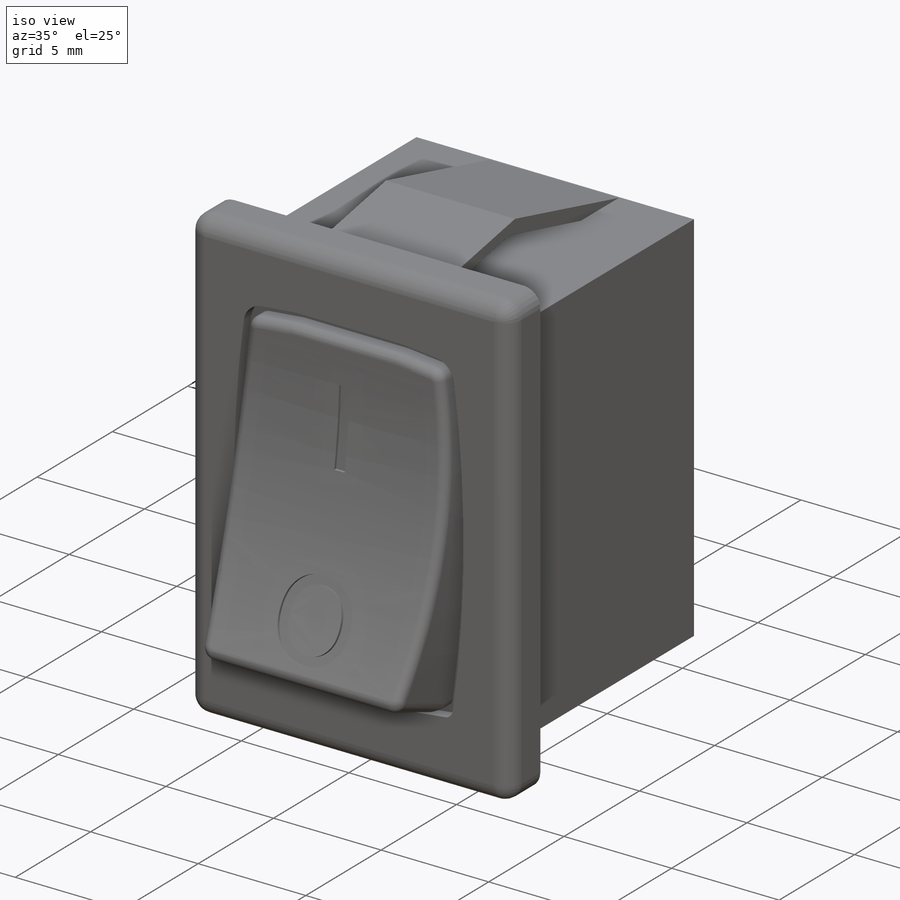
[diagram: iso view]
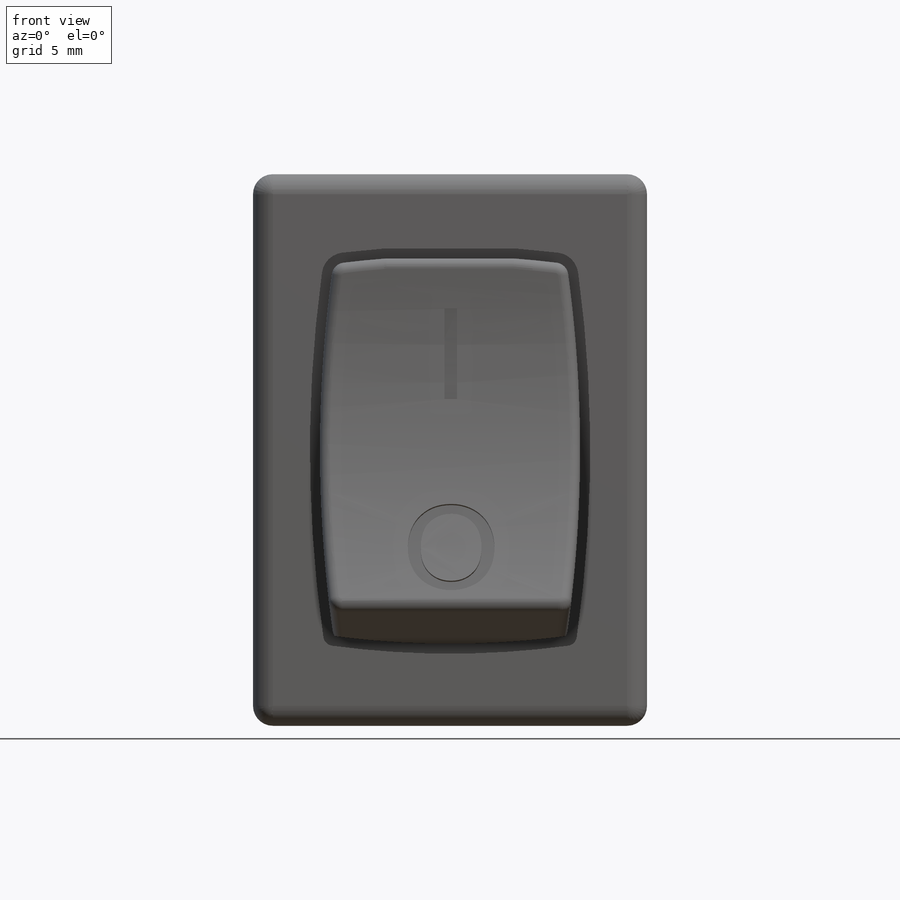
[diagram: front view]
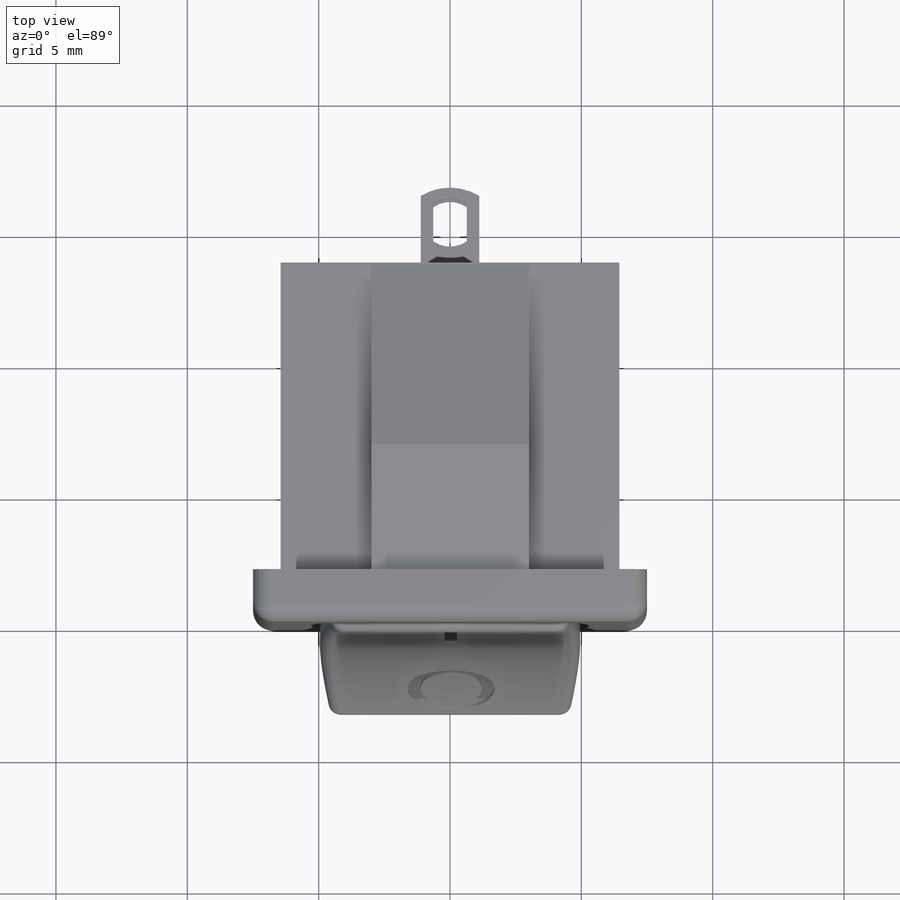
[diagram: top view]
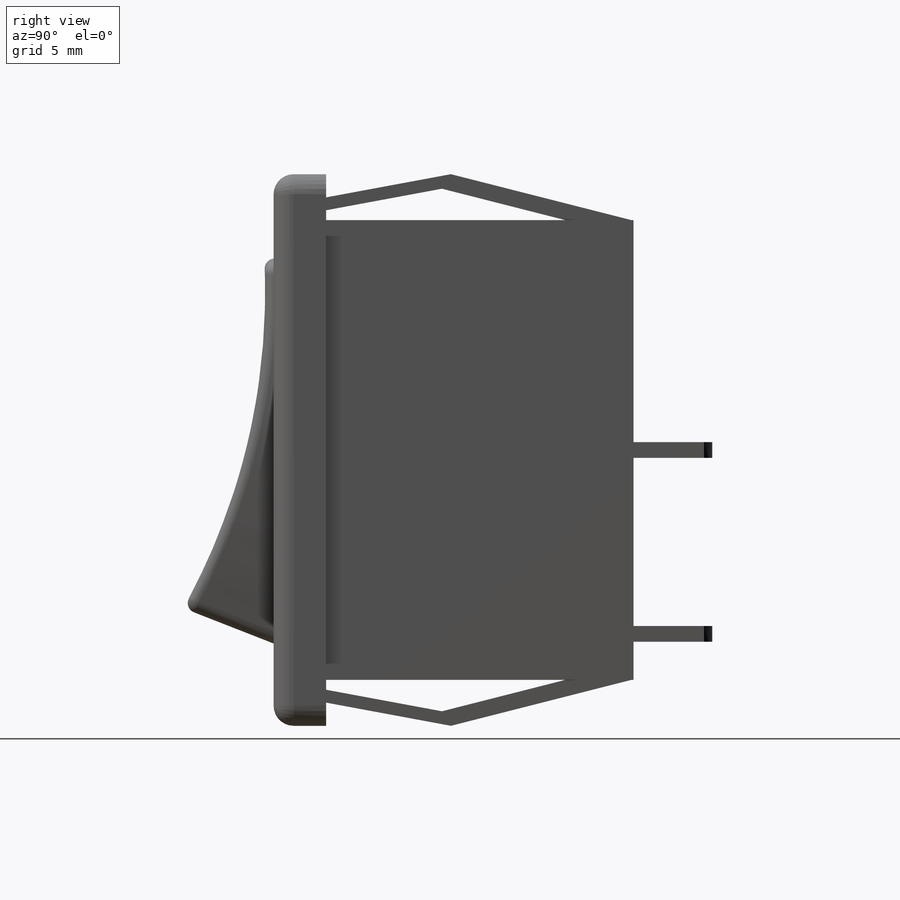
[diagram: right view]
SOLIDWORKS PART (.sldprt)
format: sldprt  version: not decoded by parser v0  size: 530,432 bytes
history: native  units: mm
features: sketch x11, plane x8, extrude x5, cut_extrude x4, fillet x3, material x1, mirror x1, pattern_linear x1 (+9 scaffold rows collapsed)
feature tree (43):
  scaffold x9  (default folders/planes/origin — collapsed)
  material  "PW100:Mi:0:30:C1:0:1:2:Re:16:"
  plane  "Plane1"
  plane  "Plane2"
  plane  "Plane3"
  sketch  "Sketch1"  dims[c1.D1=15.0114mm c1.D2=20.828mm c2.D1=15.0mm c2.D2=21.0mm c2.D3=7.5mm c2.D4=10.5mm]
  extrude  "Base-Extrude"  Depth=2mm
  sketch  "Sketch2"  dims[D1=6.45mm D2=6.45mm D3=17.5mm D4=1.75mm]
  extrude  "Boss-Extrude1"  Depth=11.7mm
  plane  "Plane4"  Offset=2.5527mm
  plane  "Plane5"  Offset=4.445mm
  sketch  "Sketch4"  dims[D1=~11.629194mm D2=4.7498mm]
  extrude  "Boss-Extrude2"  Depth=6mm
  mirror  "Mirror2"
  sketch  "Sketch5"  dims[c1.D1=14.7574mm c1.D2=2.5527mm c2.D1=14.7574mm c2.D2=9.906mm]
  extrude  "Boss-Extrude3"  Depth=3.5052mm
  plane  "Plane6"
  sketch  "Sketch6"  dims[D1=24.8412mm]
  cut_extrude  "Cut-Extrude9"  [1 undecoded]
  fillet  "Fillet10"  Radius=0.762mm
  fillet  "Fillet12"  Radius=0.508mm
  sketch  "Sketch15"  dims[D3=0.381mm D1=0.0mm D2=0.381mm]
  cut_extrude  "Cut-Extrude10"  Depth=0.508mm
  fillet  "Fillet13"  Radius=0.381mm
  plane  "Plane7"  Offset=3.175mm
  sketch  "Sketch17"
  cut_extrude  "Cut-Extrude15"  Depth=0.127mm
  plane  "Plane8"
  sketch  "Sketch18"
  cut_extrude  "Cut-Extrude17"  Depth=0.127mm
  sketch  "Sketch19"  dims[D7=1.5mm D8=0.3mm D1=1.2mm D2=0.6mm D3=1.2mm D4=0.6mm D5=16.0mm D6=12.6mm]
  sketch  "Sketch20"  dims[D1=7.0mm D2=4.8mm]
  sketch  "Sketch22"  dims[D1=3.0mm D2=~2.224036mm]
  extrude  "Extrude3"  Depth=0.6mm
  pattern_linear  "LPattern3"  Count1=2 Count2=1 Spacing1=7mm Spacing2=50mm
decode coverage: 21 of 25 modeling features carry decoded parameters
note: ~ marks probable driven/reference dimensions
note: 1 parameter value undecoded
note: suppression state not decoded; provenance and decode notes live in map.json
